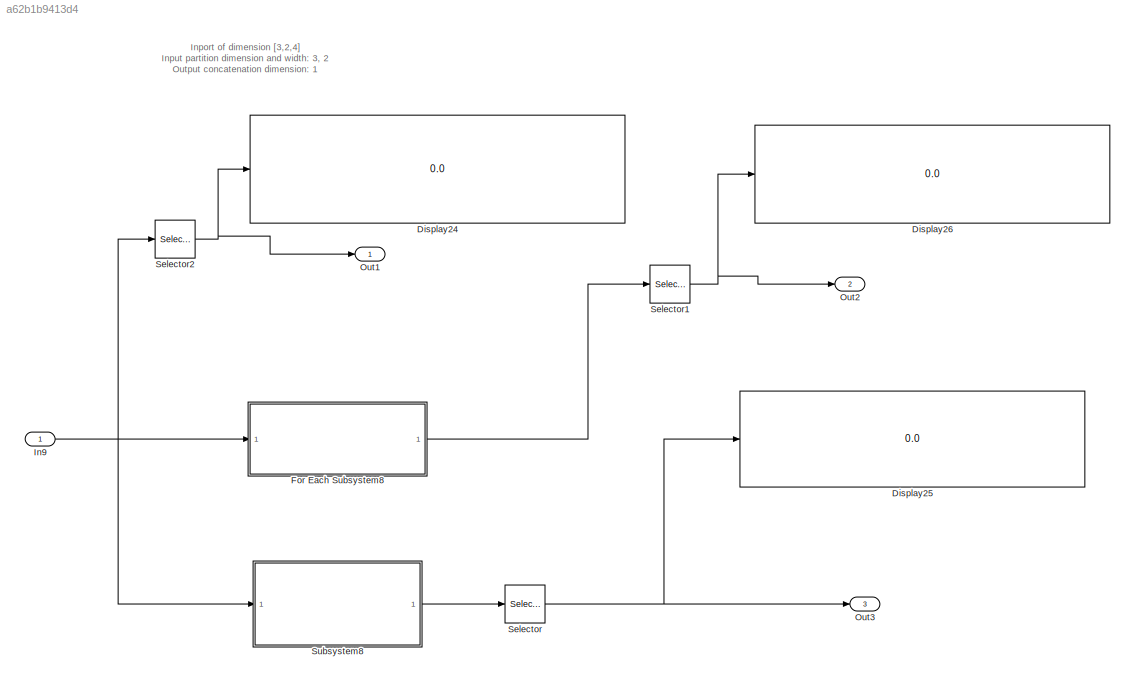
MODEL slx_a62b1b9413d4
KIND model
CONFIG AbsTol = auto
CONFIG EnableMultiTasking = on
CONFIG FixedStep = 0.200000
CONFIG MaxStep = auto
CONFIG MinStep = auto
CONFIG RelTol = 1e-3
CONFIG SampleTimeConstraint = Unconstrained
CONFIG Solver = FixedStepDiscrete
CONFIG SolverName = FixedStepDiscrete
CONFIG StartTime = 0.0
CONFIG StopTime = 10.0
BLOCK [Display] Display24
  Decimation = 1
  Ports = [1]
BLOCK [Display] Display25
  Decimation = 1
  Ports = [1]
BLOCK [Display] Display26
  Decimation = 1
  Ports = [1]
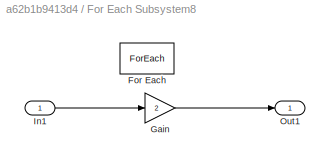
BLOCK [SubSystem] For Each Subsystem8
  MinAlgLoopOccurrences = on
  Ports = [1, 1]
  RequestExecContextInheritance = off
  TreatAsAtomicUnit = on
  Variant = off
BLOCK [ForEach] For Each Subsystem8/For Each
  DisableCoverage = on
  IndexMode = One-based
  Ports = []
BLOCK [Gain] For Each Subsystem8/Gain
  Gain = 2
  OutDataTypeStr = Inherit: Inherit via internal rule
  ParamDataTypeStr = Inherit: Inherit via internal rule
  SaturateOnIntegerOverflow = off
BLOCK [Inport] For Each Subsystem8/In1
  IconDisplay = Port number
  OutDataTypeStr = double
  Partition = on
  PartitionDimension = 3
  PartitionOffset = 0
  PartitionWidth = 2
BLOCK [Outport] For Each Subsystem8/Out1
  ConcatenationDimension = 1
  IconDisplay = Port number
BLOCK [Inport] In9
  IconDisplay = Port number
  PortDimensions = [3 2 4]
BLOCK [Outport] Out1
  IconDisplay = Port number
BLOCK [Outport] Out2
  IconDisplay = Port number
  Port = 2
BLOCK [Outport] Out3
  IconDisplay = Port number
  Port = 3
BLOCK [Selector] Selector
  IndexOptions = Select all,Select all,Index vector (dialog)
  Indices = [1 3],1,1
  InputPortWidth = 3
  NumberOfDimensions = 3
  OutputSizes = 1,1,1
  Ports = [1, 1]
BLOCK [Selector] Selector1
  IndexOptions = Select all,Select all,Index vector (dialog)
  Indices = [1 3],1,1
  InputPortWidth = 3
  NumberOfDimensions = 3
  OutputSizes = 1,1,1
  Ports = [1, 1]
BLOCK [Selector] Selector2
  IndexOptions = Select all,Select all,Index vector (dialog)
  Indices = [1 3],1,1
  InputPortWidth = 3
  NumberOfDimensions = 3
  OutputSizes = 1,1,1
  Ports = [1, 1]
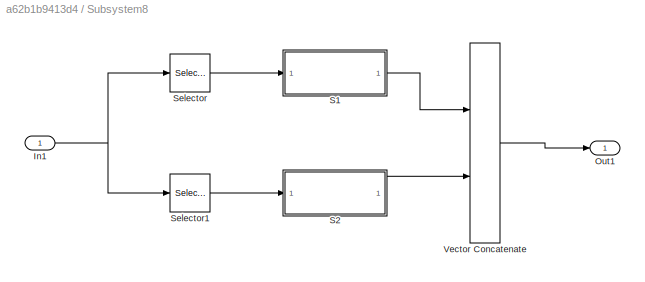
BLOCK [SubSystem] Subsystem8
  MinAlgLoopOccurrences = on
  Ports = [1, 1]
  RequestExecContextInheritance = off
  TreatAsAtomicUnit = on
  Variant = off
BLOCK [Inport] Subsystem8/In1
  IconDisplay = Port number
  OutDataTypeStr = double
BLOCK [Outport] Subsystem8/Out1
  IconDisplay = Port number
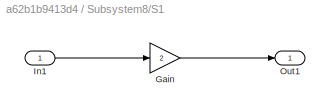
BLOCK [SubSystem] Subsystem8/S1
  MinAlgLoopOccurrences = on
  Ports = [1, 1]
  RequestExecContextInheritance = off
  TreatAsAtomicUnit = on
  Variant = off
BLOCK [Gain] Subsystem8/S1/Gain
  Gain = 2
  OutDataTypeStr = Inherit: Inherit via internal rule
  ParamDataTypeStr = Inherit: Inherit via internal rule
  SaturateOnIntegerOverflow = off
BLOCK [Inport] Subsystem8/S1/In1
  IconDisplay = Port number
  OutDataTypeStr = double
BLOCK [Outport] Subsystem8/S1/Out1
  IconDisplay = Port number
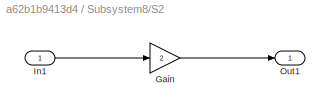
BLOCK [SubSystem] Subsystem8/S2
  MinAlgLoopOccurrences = on
  Ports = [1, 1]
  RequestExecContextInheritance = off
  TreatAsAtomicUnit = on
  Variant = off
BLOCK [Gain] Subsystem8/S2/Gain
  Gain = 2
  OutDataTypeStr = Inherit: Inherit via internal rule
  ParamDataTypeStr = Inherit: Inherit via internal rule
  SaturateOnIntegerOverflow = off
BLOCK [Inport] Subsystem8/S2/In1
  IconDisplay = Port number
  OutDataTypeStr = double
BLOCK [Outport] Subsystem8/S2/Out1
  IconDisplay = Port number
BLOCK [Selector] Subsystem8/Selector
  IndexOptions = Select all,Select all,Index vector (dialog)
  Indices = , ,[1 2]
  InputPortWidth = 3
  NumberOfDimensions = 3
  OutputSizes = 1,1,1
  Ports = [1, 1]
BLOCK [Selector] Subsystem8/Selector1
  IndexOptions = Select all,Select all,Index vector (dialog)
  Indices = [3 4], ,[3 4]
  InputPortWidth = 3
  NumberOfDimensions = 3
  OutputSizes = 1,1,1
  Ports = [1, 1]
BLOCK [Concatenate] Subsystem8/Vector Concatenate
  Mode = Multidimensional array
  Ports = [2, 1]
ANNOTATION (root): Inport of dimension [3,2,4] Input partition dimension and width: 3, 2 Output concatenation dimension: 1
LINE For Each Subsystem8/Gain:1 -> For Each Subsystem8/Out1:1
LINE For Each Subsystem8/In1:1 -> For Each Subsystem8/Gain:1
LINE For Each Subsystem8:1 -> Selector1:1
NET In9:1 -> For Each Subsystem8:1, Selector2:1, Subsystem8:1
NET Selector1:1 -> Display26:1, Out2:1
NET Selector2:1 -> Display24:1, Out1:1
NET Selector:1 -> Display25:1, Out3:1
NET Subsystem8/In1:1 -> Subsystem8/Selector1:1, Subsystem8/Selector:1
LINE Subsystem8/S1/Gain:1 -> Subsystem8/S1/Out1:1
LINE Subsystem8/S1/In1:1 -> Subsystem8/S1/Gain:1
LINE Subsystem8/S1:1 -> Subsystem8/Vector Concatenate:1
LINE Subsystem8/S2/Gain:1 -> Subsystem8/S2/Out1:1
LINE Subsystem8/S2/In1:1 -> Subsystem8/S2/Gain:1
LINE Subsystem8/S2:1 -> Subsystem8/Vector Concatenate:2
LINE Subsystem8/Selector1:1 -> Subsystem8/S2:1
LINE Subsystem8/Selector:1 -> Subsystem8/S1:1
LINE Subsystem8/Vector Concatenate:1 -> Subsystem8/Out1:1
LINE Subsystem8:1 -> Selector:1
note: NET lines group one-source signal fan-out (src -> all destinations, sorted); 1:1 wires keep LINE
